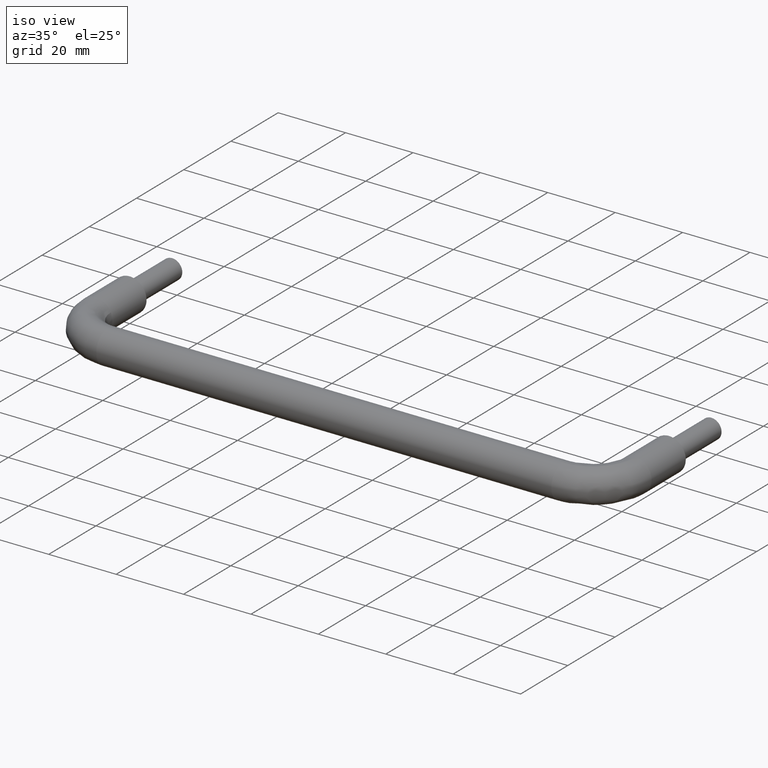
[diagram: clean part render]
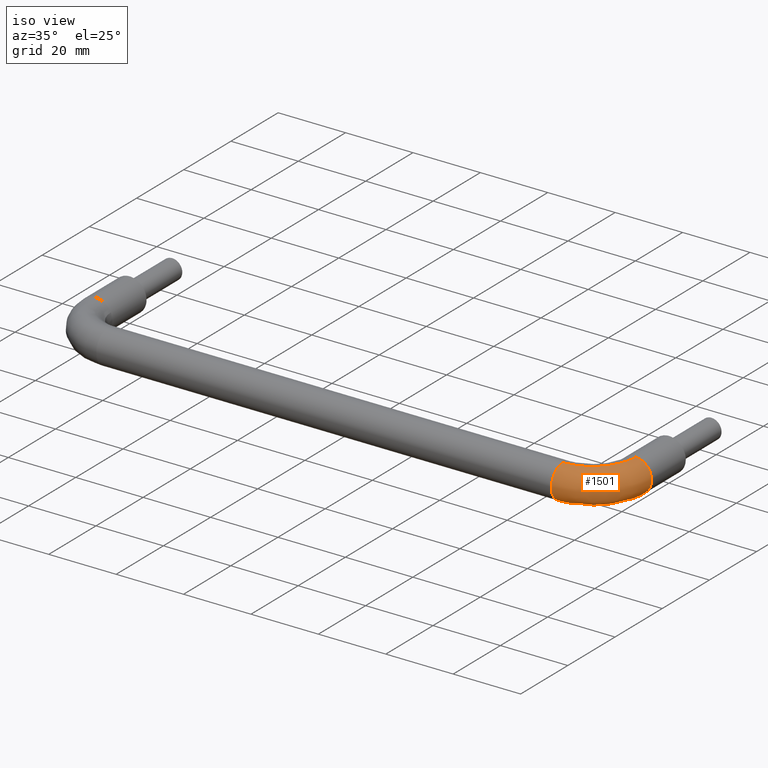
[diagram: same view with one face highlighted and labeled with its STEP entity id]
A machine part, iso view. The second image highlights one B-rep face of the part: STEP entity #1501.
In plain terms, the highlighted face is a freeform B-spline surface patch.
Its self-contained STEP definition (entity closure, byte-faithful):
#730=CARTESIAN_POINT('',(163.294846744962510,-14.499999999999950,-3.760848963626144));
#731=VERTEX_POINT('',#730);
#732=CARTESIAN_POINT('',(159.937169799699600,-14.500000000789459,-4.999605221007975));
#733=VERTEX_POINT('',#732);
#734=CARTESIAN_POINT('',(163.294846744962570,-14.500000000000004,-3.760848963626327));
#735=CARTESIAN_POINT('',(161.880438048094530,-14.499999999999995,-5.0));
#736=CARTESIAN_POINT('',(160.0,-14.500000000000000,-5.0));
#737=CARTESIAN_POINT('',(159.968583659156850,-14.499999999999996,-5.000000000000001));
#738=CARTESIAN_POINT('',(159.937169799699660,-14.500000000789456,-4.999605221007975));
#746=(BOUNDED_CURVE()B_SPLINE_CURVE(2,(#734,#735,#736,#737,#738),.UNSPECIFIED.,.F.,.U.)B_SPLINE_CURVE_WITH_KNOTS((3,2,3),(0.134954764893290,0.250000000000000,0.252215704140435),.UNSPECIFIED.)CURVE()GEOMETRIC_REPRESENTATION_ITEM()RATIONAL_B_SPLINE_CURVE((0.854482188675951,0.865216123121782,1.0,0.997404141129478,0.994854295500936))REPRESENTATION_ITEM(''));
#747=EDGE_CURVE('',#731,#733,#746,.T.);
#848=CARTESIAN_POINT('',(165.0,-14.500000000000000,0.0));
#849=VERTEX_POINT('',#848);
#850=CARTESIAN_POINT('',(165.0,-14.500000000000000,0.0));
#851=CARTESIAN_POINT('',(165.0,-14.500000000000004,-2.266979173491211));
#852=CARTESIAN_POINT('',(163.294846744962570,-14.500000000000004,-3.760848963626326));
#860=(BOUNDED_CURVE()B_SPLINE_CURVE(2,(#850,#851,#852),.UNSPECIFIED.,.F.,.U.)B_SPLINE_CURVE_WITH_KNOTS((3,3),(0.0,0.134954764893290),.UNSPECIFIED.)CURVE()GEOMETRIC_REPRESENTATION_ITEM()RATIONAL_B_SPLINE_CURVE((1.0,0.841890658064766,0.854482188675951))REPRESENTATION_ITEM(''));
#861=EDGE_CURVE('',#849,#731,#860,.T.);
#895=CARTESIAN_POINT('',(160.348666263995000,-14.500000001517460,4.987828368774506));
#896=VERTEX_POINT('',#895);
#912=CARTESIAN_POINT('',(160.348666263994970,-14.500000001517463,4.987828368774506));
#913=CARTESIAN_POINT('',(164.999999999999940,-14.500000000000002,4.662684224867201));
#914=CARTESIAN_POINT('',(165.0,-14.500000000000000,0.0));
#922=(BOUNDED_CURVE()B_SPLINE_CURVE(2,(#912,#913,#914),.UNSPECIFIED.,.F.,.U.)B_SPLINE_CURVE_WITH_KNOTS((3,3),(0.762166313886754,1.0),.UNSPECIFIED.)CURVE()GEOMETRIC_REPRESENTATION_ITEM()RATIONAL_B_SPLINE_CURVE((0.972879875494736,0.721360504528092,1.0))REPRESENTATION_ITEM(''));
#923=EDGE_CURVE('',#896,#849,#922,.T.);
#956=CARTESIAN_POINT('',(147.500000002716090,-27.348666267987259,4.987828368495434));
#957=VERTEX_POINT('',#956);
#1012=CARTESIAN_POINT('',(147.500000000000000,-30.626872198659441,-3.441772516391943));
#1013=VERTEX_POINT('',#1012);
#1019=CARTESIAN_POINT('',(147.500000000000000,-32.0,0.0));
#1020=VERTEX_POINT('',#1019);
#1021=CARTESIAN_POINT('',(147.500000000000000,-32.0,0.0));
#1022=CARTESIAN_POINT('',(147.500000000000000,-32.0,-1.994797151259687));
#1023=CARTESIAN_POINT('',(147.499999999999970,-30.626872198659445,-3.441772516391943));
#1031=(BOUNDED_CURVE()B_SPLINE_CURVE(2,(#1021,#1022,#1023),.UNSPECIFIED.,.F.,.U.)B_SPLINE_CURVE_WITH_KNOTS((3,3),(0.0,0.121049496527031),.UNSPECIFIED.)CURVE()GEOMETRIC_REPRESENTATION_ITEM()RATIONAL_B_SPLINE_CURVE((1.0,0.858181693305800,0.853699663600792))REPRESENTATION_ITEM(''));
#1032=EDGE_CURVE('',#1020,#1013,#1031,.T.);
#1034=CARTESIAN_POINT('',(147.500000002716120,-27.348666267987262,4.987828368495434));
#1035=CARTESIAN_POINT('',(147.499999999999970,-32.000000000000007,4.662684217384964));
#1036=CARTESIAN_POINT('',(147.500000000000000,-32.0,0.0));
#1044=(BOUNDED_CURVE()B_SPLINE_CURVE(2,(#1034,#1035,#1036),.UNSPECIFIED.,.F.,.U.)B_SPLINE_CURVE_WITH_KNOTS((3,3),(0.762166314162063,1.0),.UNSPECIFIED.)CURVE()GEOMETRIC_REPRESENTATION_ITEM()RATIONAL_B_SPLINE_CURVE((0.972879874912433,0.721360504850637,1.0))REPRESENTATION_ITEM(''));
#1045=EDGE_CURVE('',#957,#1020,#1044,.T.);
#1083=CARTESIAN_POINT('',(147.500000001367910,-26.937169798597431,-4.999605220994124));
#1084=VERTEX_POINT('',#1083);
#1098=CARTESIAN_POINT('',(147.499999999999970,-30.626872198659445,-3.441772516391943));
#1099=CARTESIAN_POINT('',(147.500000000000060,-29.148170121130040,-5.000000000000001));
#1100=CARTESIAN_POINT('',(147.500000000000000,-27.0,-5.0));
#1101=CARTESIAN_POINT('',(147.500000000000000,-26.968583658054509,-5.000000000000001));
#1102=CARTESIAN_POINT('',(147.500000001367910,-26.937169798597434,-4.999605220994124));
#1110=(BOUNDED_CURVE()B_SPLINE_CURVE(2,(#1098,#1099,#1100,#1101,#1102),.UNSPECIFIED.,.F.,.U.)B_SPLINE_CURVE_WITH_KNOTS((3,2,3),(0.121049496527031,0.250000000000000,0.252215704217978),.UNSPECIFIED.)CURVE()GEOMETRIC_REPRESENTATION_ITEM()RATIONAL_B_SPLINE_CURVE((0.853699663600792,0.848925087880748,1.0,0.997404141038632,0.994854295322463))REPRESENTATION_ITEM(''));
#1111=EDGE_CURVE('',#1013,#1084,#1110,.T.);
#1430=CARTESIAN_POINT('',(147.500000001367940,-26.937169798597434,-4.999605220994125));
#1431=CARTESIAN_POINT('',(159.937169799004380,-26.937169797847403,-4.999605221019079));
#1432=CARTESIAN_POINT('',(159.937169799699600,-14.500000000789456,-4.999605221007975));
#1440=(BOUNDED_CURVE()B_SPLINE_CURVE(2,(#1430,#1431,#1432),.UNSPECIFIED.,.F.,.U.)B_SPLINE_CURVE_WITH_KNOTS((3,3),(-1.734750791429830,-0.265249208473514),.UNSPECIFIED.)CURVE()GEOMETRIC_REPRESENTATION_ITEM()RATIONAL_B_SPLINE_CURVE((0.889029723495438,0.628638946281181,0.889029723529692))REPRESENTATION_ITEM(''));
#1441=EDGE_CURVE('',#1084,#733,#1440,.T.);
#1446=CARTESIAN_POINT('',(147.500000002716120,-27.348666267987259,4.987828368495434));
#1447=CARTESIAN_POINT('',(160.348666254842270,-27.348666252445017,4.987828369202161));
#1448=CARTESIAN_POINT('',(160.348666263995030,-14.500000001517463,4.987828368774506));
#1456=(BOUNDED_CURVE()B_SPLINE_CURVE(2,(#1446,#1447,#1448),.UNSPECIFIED.,.F.,.U.)B_SPLINE_CURVE_WITH_KNOTS((3,3),(-1.734750791219091,-0.265249208587038),.UNSPECIFIED.)CURVE()GEOMETRIC_REPRESENTATION_ITEM()RATIONAL_B_SPLINE_CURVE((0.869031711723073,0.614498216651757,0.869031711790234))REPRESENTATION_ITEM(''));
#1457=EDGE_CURVE('',#957,#896,#1456,.T.);
#1462=CARTESIAN_POINT('',(146.640089417946340,-26.836279272466932,-4.998713508964115));
#1463=CARTESIAN_POINT('',(160.825054396281440,-27.825054025495966,-4.998713508964117));
#1464=CARTESIAN_POINT('',(159.836279248538830,-13.640089074674748,-4.998713508964113));
#1465=CARTESIAN_POINT('',(146.637629637865640,-26.871567283404495,-4.999158050603607));
#1466=CARTESIAN_POINT('',(160.863170805199700,-27.863170433353627,-4.999158050603609));
#1467=CARTESIAN_POINT('',(159.871567259407980,-13.637629293612088,-4.999158050603606));
#1468=CARTESIAN_POINT('',(146.287497276693670,-31.894566976500137,-5.062435420435841));
#1469=CARTESIAN_POINT('',(166.288773019992930,-33.288772497173028,-5.062435420435840));
#1470=CARTESIAN_POINT('',(164.894566942760780,-13.287496792669231,-5.062435420435842));
#1471=CARTESIAN_POINT('',(146.283128246996110,-31.957245087019299,-0.062830199416764));
#1472=CARTESIAN_POINT('',(166.356474894575770,-33.356474369872032,-0.062830199416764));
#1473=CARTESIAN_POINT('',(164.957245053158370,-13.283127761227597,-0.062830199416764));
#1474=CARTESIAN_POINT('',(146.279002338772220,-32.016435376294559,4.658564189198486));
#1475=CARTESIAN_POINT('',(166.420409392725870,-33.420408866243029,4.658564189198486));
#1476=CARTESIAN_POINT('',(165.016435342318830,-13.279001851356655,4.658564189198486));
#1477=CARTESIAN_POINT('',(146.609018869030360,-27.282017441733814,4.990319248683125));
#1478=CARTESIAN_POINT('',(161.306519287015220,-28.306518902832440,4.990319248683125));
#1479=CARTESIAN_POINT('',(160.282017416941190,-13.609018513355466,4.990319248683125));
#1480=CARTESIAN_POINT('',(146.611483240574050,-27.246663561657041,4.992796602552176));
#1481=CARTESIAN_POINT('',(161.268331729426880,-28.268331346306748,4.992796602552176));
#1482=CARTESIAN_POINT('',(160.246663536933000,-13.611482885882959,4.992796602552176));
#1490=(BOUNDED_SURFACE()B_SPLINE_SURFACE(2,2,((#1462,#1465,#1468,#1471,#1474,#1477,#1480),(#1463,#1466,#1469,#1472,#1475,#1478,#1481),(#1464,#1467,#1470,#1473,#1476,#1479,#1482)),.UNSPECIFIED.,.F.,.F.,.U.)B_SPLINE_SURFACE_WITH_KNOTS((3,3),(3,1,2,1,3),(0.0,31.890824110817540),(0.0,0.083628850729260,8.367900098191159,16.320800495754579,16.402838557246170),.UNSPECIFIED.)GEOMETRIC_REPRESENTATION_ITEM()RATIONAL_B_SPLINE_SURFACE(((0.921760840919715,0.919051468080324,0.647951709431553,0.916342095240933,0.658687324863928,0.898174921911141,0.900620130211509),(0.604882484993175,0.603104526868778,0.425202094466791,0.601326568744382,0.432247073437895,0.589404815876185,0.591009422632507),(0.921760852605273,0.919051479731534,0.647951717645915,0.916342106857795,0.658687333214390,0.898174933297690,0.900620141629057)))REPRESENTATION_ITEM('')SURFACE());
#1491=ORIENTED_EDGE('',*,*,#923,.F.);
#1492=ORIENTED_EDGE('',*,*,#1457,.F.);
#1493=ORIENTED_EDGE('',*,*,#1045,.T.);
#1494=ORIENTED_EDGE('',*,*,#1032,.T.);
#1495=ORIENTED_EDGE('',*,*,#1111,.T.);
#1496=ORIENTED_EDGE('',*,*,#1441,.T.);
#1497=ORIENTED_EDGE('',*,*,#747,.F.);
#1498=ORIENTED_EDGE('',*,*,#861,.F.);
#1499=EDGE_LOOP('',(#1491,#1492,#1493,#1494,#1495,#1496,#1497,#1498));
#1500=FACE_OUTER_BOUND('',#1499,.T.);
#1501=ADVANCED_FACE('',(#1500),#1490,.T.);